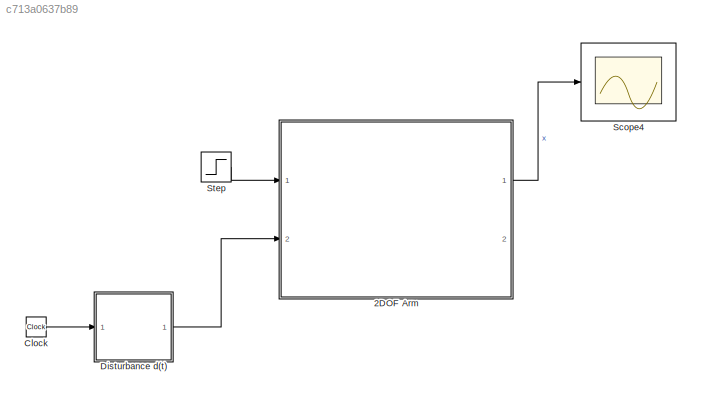
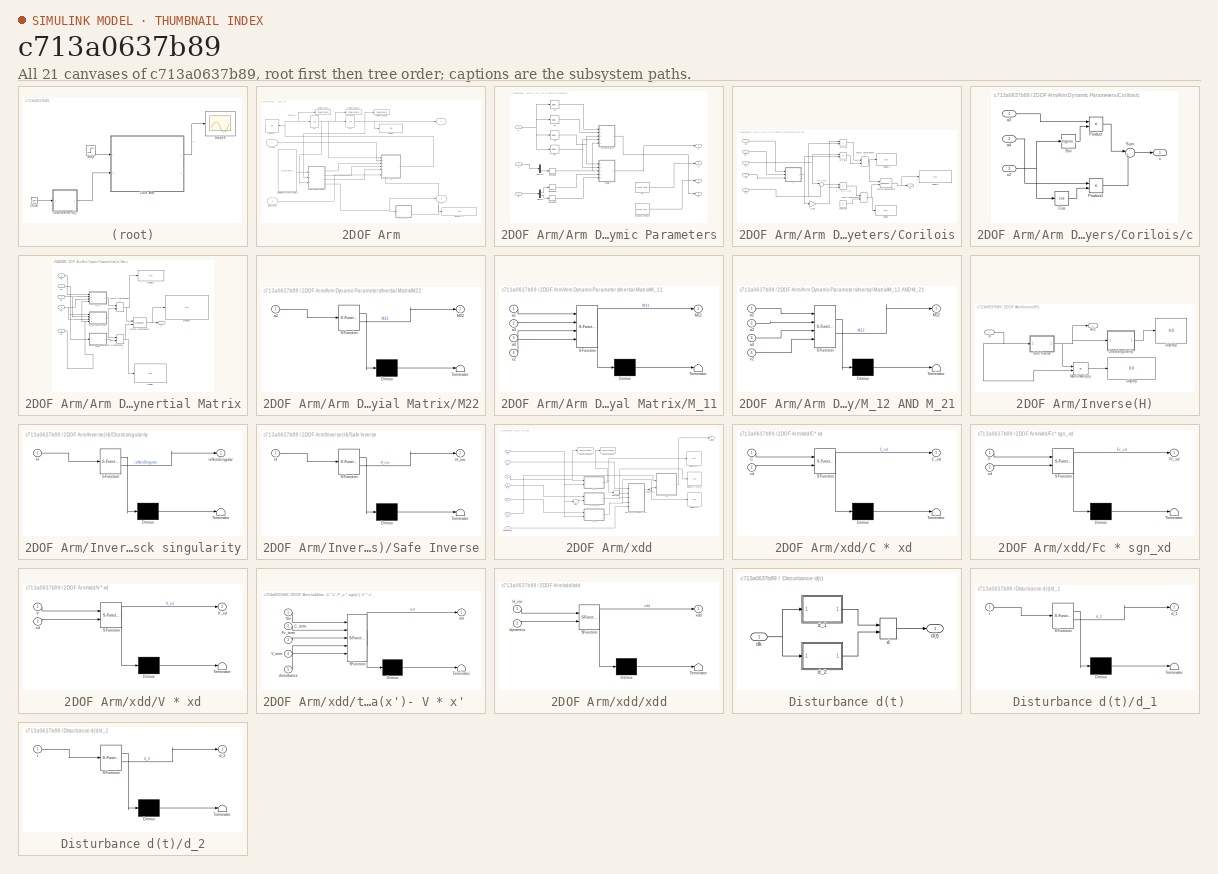
[diagram: thumbnail index - all 21 canvases of the model, root first then tree order]
MODEL slx_c713a0637b89
KIND model
CONFIG AbsTol = auto
CONFIG EnableMultiTasking = off
CONFIG FixedStep = auto
CONFIG MaxStep = 0.01
CONFIG MinStep = auto
CONFIG RelTol = 1e-3
CONFIG SampleTimeConstraint = Unconstrained
CONFIG SolverName = VariableStepAuto
CONFIG StartTime = 0.0
CONFIG StopTime = 5
BLOCK [SubSystem] 2DOF Arm
  Ports = [2, 2]
  RequestExecContextInheritance = off
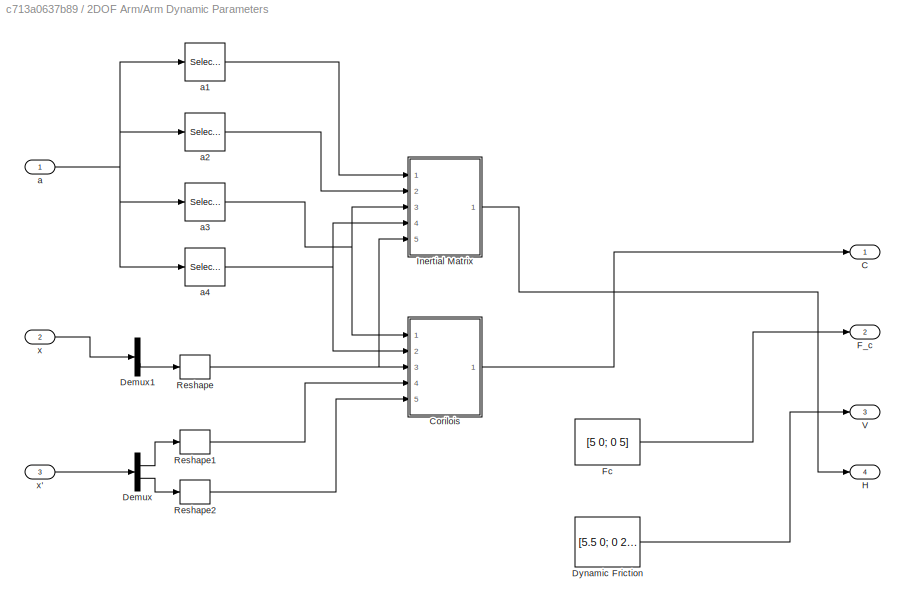
BLOCK [SubSystem] 2DOF Arm/Arm Dynamic Parameters
  Ports = [3, 4]
  RequestExecContextInheritance = off
BLOCK [Outport] 2DOF Arm/Arm Dynamic Parameters/C
BLOCK [SubSystem] 2DOF Arm/Arm Dynamic Parameters/Corilois
  Ports = [5, 1]
  RequestExecContextInheritance = off
BLOCK [Product] 2DOF Arm/Arm Dynamic Parameters/Corilois/-c * (x'_1 + x'_2)
  Ports = [2, 1]
BLOCK [Product] 2DOF Arm/Arm Dynamic Parameters/Corilois/-c * x'_2
  Ports = [2, 1]
BLOCK [Outport] 2DOF Arm/Arm Dynamic Parameters/Corilois/C
BLOCK [Constant] 2DOF Arm/Arm Dynamic Parameters/Corilois/Constant
  Value = 0
BLOCK [Display] 2DOF Arm/Arm Dynamic Parameters/Corilois/Display
  Decimation = 1
  Ports = [1]
BLOCK [Display] 2DOF Arm/Arm Dynamic Parameters/Corilois/Display1
  Decimation = 1
  Ports = [1]
BLOCK [Display] 2DOF Arm/Arm Dynamic Parameters/Corilois/Display2
  Decimation = 1
  Ports = [1]
BLOCK [Gain] 2DOF Arm/Arm Dynamic Parameters/Corilois/Gain
  Gain = -1
BLOCK [Concatenate] 2DOF Arm/Arm Dynamic Parameters/Corilois/Matrix Concatenate
  ConcatenateDimension = 2
  Mode = Multidimensional array
  Ports = [2, 1]
BLOCK [Concatenate] 2DOF Arm/Arm Dynamic Parameters/Corilois/Vector Concatenate
  Ports = [2, 1]
BLOCK [Concatenate] 2DOF Arm/Arm Dynamic Parameters/Corilois/Vector Concatenate1
  Ports = [2, 1]
BLOCK [Inport] 2DOF Arm/Arm Dynamic Parameters/Corilois/a3
BLOCK [Inport] 2DOF Arm/Arm Dynamic Parameters/Corilois/a4
  Port = 2
BLOCK [SubSystem] 2DOF Arm/Arm Dynamic Parameters/Corilois/c
  Ports = [3, 1]
  RequestExecContextInheritance = off
BLOCK [Product] 2DOF Arm/Arm Dynamic Parameters/Corilois/c * x'_1
  Ports = [2, 1]
BLOCK [Trigonometry] 2DOF Arm/Arm Dynamic Parameters/Corilois/c/Cos
  Operator = cos
  Ports = [1, 1]
BLOCK [Product] 2DOF Arm/Arm Dynamic Parameters/Corilois/c/Product
  Ports = [2, 1]
BLOCK [Product] 2DOF Arm/Arm Dynamic Parameters/Corilois/c/Product1
  Ports = [2, 1]
BLOCK [Trigonometry] 2DOF Arm/Arm Dynamic Parameters/Corilois/c/Sin
  Ports = [1, 1]
BLOCK [Sum] 2DOF Arm/Arm Dynamic Parameters/Corilois/c/Sum
  Inputs = |+-
  Ports = [2, 1]
BLOCK [Inport] 2DOF Arm/Arm Dynamic Parameters/Corilois/c/a3
BLOCK [Inport] 2DOF Arm/Arm Dynamic Parameters/Corilois/c/a4
  Port = 2
BLOCK [Outport] 2DOF Arm/Arm Dynamic Parameters/Corilois/c/c
BLOCK [Inport] 2DOF Arm/Arm Dynamic Parameters/Corilois/c/x2
  Port = 3
BLOCK [Inport] 2DOF Arm/Arm Dynamic Parameters/Corilois/x'_1
  Port = 4
BLOCK [Sum] 2DOF Arm/Arm Dynamic Parameters/Corilois/x'_1 + x'_2
  Inputs = |++
  Ports = [2, 1]
BLOCK [Inport] 2DOF Arm/Arm Dynamic Parameters/Corilois/x'_2
  Port = 5
BLOCK [Inport] 2DOF Arm/Arm Dynamic Parameters/Corilois/x2
  Port = 3
BLOCK [Demux] 2DOF Arm/Arm Dynamic Parameters/Demux
  Outputs = 2
  Ports = [1, 2]
BLOCK [Demux] 2DOF Arm/Arm Dynamic Parameters/Demux1
  Outputs = 2
  Ports = [1, 2]
BLOCK [Constant] 2DOF Arm/Arm Dynamic Parameters/Dynamic Friction
  Value = [5.5 0; 0 2.7]
BLOCK [Outport] 2DOF Arm/Arm Dynamic Parameters/F_c
  Port = 2
BLOCK [Constant] 2DOF Arm/Arm Dynamic Parameters/Fc
  Value = [5 0; 0 5]
BLOCK [Outport] 2DOF Arm/Arm Dynamic Parameters/H
  Port = 4
BLOCK [SubSystem] 2DOF Arm/Arm Dynamic Parameters/Inertial Matrix
  Ports = [5, 1]
  RequestExecContextInheritance = off
BLOCK [Display] 2DOF Arm/Arm Dynamic Parameters/Inertial Matrix/Display
  Decimation = 1
  Ports = [1]
BLOCK [Display] 2DOF Arm/Arm Dynamic Parameters/Inertial Matrix/Display1
  Decimation = 1
  Ports = [1]
BLOCK [Display] 2DOF Arm/Arm Dynamic Parameters/Inertial Matrix/Display2
  Decimation = 1
  Ports = [1]
BLOCK [Outport] 2DOF Arm/Arm Dynamic Parameters/Inertial Matrix/H
BLOCK [SubSystem] 2DOF Arm/Arm Dynamic Parameters/Inertial Matrix/M22
  ErrorFcn = Stateflow.Translate.translate
  PermitHierarchicalResolution = ExplicitOnly
  Ports = [1, 1]
  RequestExecContextInheritance = off
  SFBlockType = MATLAB Function
  TreatAsAtomicUnit = on
BLOCK [Demux] 2DOF Arm/Arm Dynamic Parameters/Inertial Matrix/M22/ Demux 
  Outputs = 1
  Ports = [1, 1]
BLOCK [S-Function] 2DOF Arm/Arm Dynamic Parameters/Inertial Matrix/M22/ SFunction 
  EnableBusSupport = on
  FunctionName = sf_sfun
  PortCounts = [1 2]
  Ports = [1, 2]
  SFcnIsStateOwnerBlock = off
  SFunctionDeploymentMode = off
  Tag = Stateflow S-Function 7
BLOCK [Terminator] 2DOF Arm/Arm Dynamic Parameters/Inertial Matrix/M22/ Terminator 
BLOCK [Outport] 2DOF Arm/Arm Dynamic Parameters/Inertial Matrix/M22/M22
BLOCK [Inport] 2DOF Arm/Arm Dynamic Parameters/Inertial Matrix/M22/a2
BLOCK [SubSystem] 2DOF Arm/Arm Dynamic Parameters/Inertial Matrix/M_11
  ErrorFcn = Stateflow.Translate.translate
  PermitHierarchicalResolution = ExplicitOnly
  Ports = [4, 1]
  RequestExecContextInheritance = off
  SFBlockType = MATLAB Function
  TreatAsAtomicUnit = on
BLOCK [Demux] 2DOF Arm/Arm Dynamic Parameters/Inertial Matrix/M_11/ Demux 
  Outputs = 1
  Ports = [1, 1]
BLOCK [S-Function] 2DOF Arm/Arm Dynamic Parameters/Inertial Matrix/M_11/ SFunction 
  EnableBusSupport = on
  FunctionName = sf_sfun
  PortCounts = [4 2]
  Ports = [4, 2]
  SFcnIsStateOwnerBlock = off
  SFunctionDeploymentMode = off
  Tag = Stateflow S-Function 8
BLOCK [Terminator] 2DOF Arm/Arm Dynamic Parameters/Inertial Matrix/M_11/ Terminator 
BLOCK [Outport] 2DOF Arm/Arm Dynamic Parameters/Inertial Matrix/M_11/M11
  VectorParamsAs1DForOutWhenUnconnected = off
BLOCK [Inport] 2DOF Arm/Arm Dynamic Parameters/Inertial Matrix/M_11/a1
BLOCK [Inport] 2DOF Arm/Arm Dynamic Parameters/Inertial Matrix/M_11/a3
  Port = 2
BLOCK [Inport] 2DOF Arm/Arm Dynamic Parameters/Inertial Matrix/M_11/a4
  Port = 3
BLOCK [Inport] 2DOF Arm/Arm Dynamic Parameters/Inertial Matrix/M_11/x2
  Port = 4
BLOCK [SubSystem] 2DOF Arm/Arm Dynamic Parameters/Inertial Matrix/M_12 AND M_21
  ErrorFcn = Stateflow.Translate.translate
  PermitHierarchicalResolution = ExplicitOnly
  Ports = [4, 1]
  RequestExecContextInheritance = off
  SFBlockType = MATLAB Function
  TreatAsAtomicUnit = on
BLOCK [Demux] 2DOF Arm/Arm Dynamic Parameters/Inertial Matrix/M_12 AND M_21/ Demux 
  Outputs = 1
  Ports = [1, 1]
BLOCK [S-Function] 2DOF Arm/Arm Dynamic Parameters/Inertial Matrix/M_12 AND M_21/ SFunction 
  EnableBusSupport = on
  FunctionName = sf_sfun
  PortCounts = [4 2]
  Ports = [4, 2]
  SFcnIsStateOwnerBlock = off
  SFunctionDeploymentMode = off
  Tag = Stateflow S-Function 9
BLOCK [Terminator] 2DOF Arm/Arm Dynamic Parameters/Inertial Matrix/M_12 AND M_21/ Terminator 
BLOCK [Outport] 2DOF Arm/Arm Dynamic Parameters/Inertial Matrix/M_12 AND M_21/M12
BLOCK [Inport] 2DOF Arm/Arm Dynamic Parameters/Inertial Matrix/M_12 AND M_21/a2
BLOCK [Inport] 2DOF Arm/Arm Dynamic Parameters/Inertial Matrix/M_12 AND M_21/a3
  Port = 2
BLOCK [Inport] 2DOF Arm/Arm Dynamic Parameters/Inertial Matrix/M_12 AND M_21/a4
  Port = 3
BLOCK [Inport] 2DOF Arm/Arm Dynamic Parameters/Inertial Matrix/M_12 AND M_21/x2
  Port = 4
BLOCK [Concatenate] 2DOF Arm/Arm Dynamic Parameters/Inertial Matrix/Matrix Concatenate
  ConcatenateDimension = 2
  Mode = Multidimensional array
  Ports = [2, 1]
BLOCK [Concatenate] 2DOF Arm/Arm Dynamic Parameters/Inertial Matrix/Vector Concatenate1
  Ports = [2, 1]
BLOCK [Concatenate] 2DOF Arm/Arm Dynamic Parameters/Inertial Matrix/Vector Concatenate2
  Ports = [2, 1]
BLOCK [Inport] 2DOF Arm/Arm Dynamic Parameters/Inertial Matrix/a1
BLOCK [Inport] 2DOF Arm/Arm Dynamic Parameters/Inertial Matrix/a2
  Port = 2
BLOCK [Inport] 2DOF Arm/Arm Dynamic Parameters/Inertial Matrix/a3
  Port = 3
BLOCK [Inport] 2DOF Arm/Arm Dynamic Parameters/Inertial Matrix/a4
  Port = 4
BLOCK [Inport] 2DOF Arm/Arm Dynamic Parameters/Inertial Matrix/x2
  Port = 5
BLOCK [Reshape] 2DOF Arm/Arm Dynamic Parameters/Reshape
  OutputDimensionality = Customize
  OutputDimensions = 1
  Ports = [1, 1]
BLOCK [Reshape] 2DOF Arm/Arm Dynamic Parameters/Reshape1
  OutputDimensionality = Customize
  OutputDimensions = 1
  Ports = [1, 1]
BLOCK [Reshape] 2DOF Arm/Arm Dynamic Parameters/Reshape2
  OutputDimensionality = Customize
  OutputDimensions = 1
  Ports = [1, 1]
BLOCK [Outport] 2DOF Arm/Arm Dynamic Parameters/V
  Port = 3
BLOCK [Inport] 2DOF Arm/Arm Dynamic Parameters/a
BLOCK [Selector] 2DOF Arm/Arm Dynamic Parameters/a1
  IndexOptions = Index vector (dialog)
  Indices = [1]
  InputPortWidth = 4
  OutputSizes = 1
  Ports = [1, 1]
BLOCK [Selector] 2DOF Arm/Arm Dynamic Parameters/a2
  IndexOptions = Index vector (dialog)
  Indices = [2]
  InputPortWidth = 4
  OutputSizes = 1
  Ports = [1, 1]
BLOCK [Selector] 2DOF Arm/Arm Dynamic Parameters/a3
  IndexOptions = Index vector (dialog)
  Indices = [3]
  InputPortWidth = 4
  OutputSizes = 1
  Ports = [1, 1]
BLOCK [Selector] 2DOF Arm/Arm Dynamic Parameters/a4
  IndexOptions = Index vector (dialog)
  Indices = [4]
  InputPortWidth = 4
  OutputSizes = 1
  Ports = [1, 1]
BLOCK [Inport] 2DOF Arm/Arm Dynamic Parameters/x
  Port = 2
  PortDimensions = [2 1]
BLOCK [Inport] 2DOF Arm/Arm Dynamic Parameters/x'
  Port = 3
  PortDimensions = [2 1]
BLOCK [Display] 2DOF Arm/Display
  Decimation = 1
  Ports = [1]
BLOCK [Display] 2DOF Arm/Display H^-1
  Decimation = 1
  Ports = [1]
BLOCK [Display] 2DOF Arm/Display x''
  Decimation = 1
  Ports = [1]
BLOCK [Inport] 2DOF Arm/Disturbance
  Port = 2
  PortDimensions = [2 1]
BLOCK [Constant] 2DOF Arm/Estimated Physical Parameters
  Value = [3.3;0.97;1.4;0.6]
BLOCK [Outport] 2DOF Arm/H
  Port = 2
BLOCK [SubSystem] 2DOF Arm/Inverse(H)
  NameLocation = right
  PortSchema = {"entries":[{"content":{"sides":[{"content":{"connectorIds":["In1"]},"type":"ConnectorPlacement.EquallySpacedRectSide","uuid":"e93da7b9-99f6-499c-a0cb-6f5b129eec99"},{"content":{"connectorIds":[],"side":"RIGHT"},"type":"ConnectorPlacement.EquallySpacedRectSide","uuid":"25c75cce-7d31-4940-9360-78f60f805e3f"},{"content":{"connectorIds":[],"side":"TOP"},"type":"ConnectorPlacement.EquallySpacedRectSid...<+384ch>
  Ports = [1, 1]
  RequestExecContextInheritance = off
BLOCK [SubSystem] 2DOF Arm/Inverse(H)/Check singularity
  ErrorFcn = Stateflow.Translate.translate
  PermitHierarchicalResolution = ExplicitOnly
  Ports = [1, 1]
  RequestExecContextInheritance = off
  SFBlockType = MATLAB Function
  TreatAsAtomicUnit = on
BLOCK [Demux] 2DOF Arm/Inverse(H)/Check singularity/ Demux 
  Outputs = 1
  Ports = [1, 1]
BLOCK [S-Function] 2DOF Arm/Inverse(H)/Check singularity/ SFunction 
  EnableBusSupport = on
  FunctionName = sf_sfun
  PortCounts = [1 2]
  Ports = [1, 2]
  SFcnIsStateOwnerBlock = off
  SFunctionDeploymentMode = off
  Tag = Stateflow S-Function 11
BLOCK [Terminator] 2DOF Arm/Inverse(H)/Check singularity/ Terminator 
BLOCK [Inport] 2DOF Arm/Inverse(H)/Check singularity/H
BLOCK [Outport] 2DOF Arm/Inverse(H)/Check singularity/isNonSingular
BLOCK [Display] 2DOF Arm/Inverse(H)/Display
  Decimation = 1
  Ports = [1]
BLOCK [Display] 2DOF Arm/Inverse(H)/Display1
  Decimation = 1
  Ports = [1]
BLOCK [Inport] 2DOF Arm/Inverse(H)/H
  PortDimensions = [2 2]
BLOCK [Outport] 2DOF Arm/Inverse(H)/H^-1
BLOCK [Product] 2DOF Arm/Inverse(H)/Matrix Multiply
  Multiplication = Matrix(*)
  Ports = [2, 1]
BLOCK [SubSystem] 2DOF Arm/Inverse(H)/Safe Inverse
  ErrorFcn = Stateflow.Translate.translate
  PermitHierarchicalResolution = ExplicitOnly
  Ports = [1, 1]
  RequestExecContextInheritance = off
  SFBlockType = MATLAB Function
  TreatAsAtomicUnit = on
BLOCK [Demux] 2DOF Arm/Inverse(H)/Safe Inverse/ Demux 
  Outputs = 1
  Ports = [1, 1]
BLOCK [S-Function] 2DOF Arm/Inverse(H)/Safe Inverse/ SFunction 
  EnableBusSupport = on
  FunctionName = sf_sfun
  PortCounts = [1 2]
  Ports = [1, 2]
  SFcnIsStateOwnerBlock = off
  SFunctionDeploymentMode = off
  Tag = Stateflow S-Function 15
BLOCK [Terminator] 2DOF Arm/Inverse(H)/Safe Inverse/ Terminator 
BLOCK [Inport] 2DOF Arm/Inverse(H)/Safe Inverse/H
BLOCK [Outport] 2DOF Arm/Inverse(H)/Safe Inverse/H_inv
BLOCK [ToWorkspace] 2DOF Arm/To Workspace
  FixptAsFi = on
  MaxDataPoints = inf
  Ports = [1]
  SampleTime = -1
  SaveFormat = Timeseries
  VariableName = xdd
BLOCK [ToWorkspace] 2DOF Arm/To Workspace1
  FixptAsFi = on
  MaxDataPoints = inf
  Ports = [1]
  SampleTime = -1
  SaveFormat = Timeseries
  VariableName = xd
BLOCK [ToWorkspace] 2DOF Arm/To Workspace2
  FixptAsFi = on
  MaxDataPoints = inf
  Ports = [1]
  SampleTime = -1
  SaveFormat = Structure With Time
  VariableName = x
BLOCK [Inport] 2DOF Arm/Torque
  OutDataTypeStr = double
  PortDimensions = [2 1]
  SamplingMode = Sample based
  SignalType = real
BLOCK [Integrator] 2DOF Arm/pos
  ContinuousStateAttributes = 'pos'
  InitialCondition = [0.3;0.5]
  LimitOutput = on
  LowerSaturationLimit = -2 * pi
  Ports = [1, 1]
  UpperSaturationLimit = 2*pi
BLOCK [Integrator] 2DOF Arm/vel
  ContinuousStateAttributes = 'vel'
  LimitOutput = on
  LowerSaturationLimit = -2*pi
  Ports = [1, 1]
  UpperSaturationLimit = 2*pi
BLOCK [Outport] 2DOF Arm/x
  IconDisplay = Port number and signal name
  OutDataTypeStr = double
  PortDimensions = [2 1]
  SampleTime = 0
  SamplingMode = Sample based
  SignalType = real
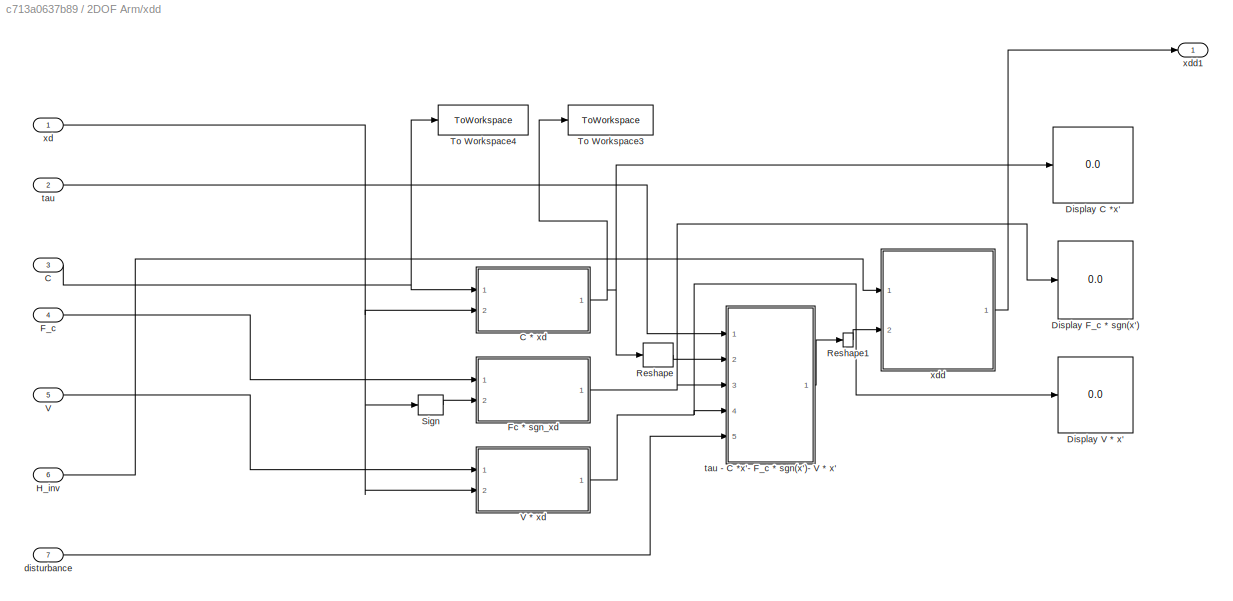
BLOCK [SubSystem] 2DOF Arm/xdd
  Ports = [7, 1]
  RequestExecContextInheritance = off
BLOCK [Inport] 2DOF Arm/xdd/C
  Port = 3
BLOCK [SubSystem] 2DOF Arm/xdd/C * xd 
  ErrorFcn = Stateflow.Translate.translate
  PermitHierarchicalResolution = ExplicitOnly
  Ports = [2, 1]
  RequestExecContextInheritance = off
  SFBlockType = MATLAB Function
  TreatAsAtomicUnit = on
BLOCK [Demux] 2DOF Arm/xdd/C * xd / Demux 
  Outputs = 1
  Ports = [1, 1]
BLOCK [S-Function] 2DOF Arm/xdd/C * xd / SFunction 
  EnableBusSupport = on
  FunctionName = sf_sfun
  PortCounts = [2 2]
  Ports = [2, 2]
  SFcnIsStateOwnerBlock = off
  SFunctionDeploymentMode = off
  Tag = Stateflow S-Function 4
BLOCK [Terminator] 2DOF Arm/xdd/C * xd / Terminator 
BLOCK [Inport] 2DOF Arm/xdd/C * xd /C
BLOCK [Outport] 2DOF Arm/xdd/C * xd /C_xd
BLOCK [Inport] 2DOF Arm/xdd/C * xd /xd
  Port = 2
BLOCK [Display] 2DOF Arm/xdd/Display C *x'
  Decimation = 1
  Ports = [1]
BLOCK [Display] 2DOF Arm/xdd/Display F_c * sgn(x')
  Decimation = 1
  Ports = [1]
BLOCK [Display] 2DOF Arm/xdd/Display V * x'
  Decimation = 1
  Ports = [1]
BLOCK [Inport] 2DOF Arm/xdd/F_c
  Port = 4
BLOCK [SubSystem] 2DOF Arm/xdd/Fc * sgn_xd
  ErrorFcn = Stateflow.Translate.translate
  PermitHierarchicalResolution = ExplicitOnly
  Ports = [2, 1]
  RequestExecContextInheritance = off
  SFBlockType = MATLAB Function
  TreatAsAtomicUnit = on
BLOCK [Demux] 2DOF Arm/xdd/Fc * sgn_xd/ Demux 
  Outputs = 1
  Ports = [1, 1]
BLOCK [S-Function] 2DOF Arm/xdd/Fc * sgn_xd/ SFunction 
  EnableBusSupport = on
  FunctionName = sf_sfun
  PortCounts = [2 2]
  Ports = [2, 2]
  SFcnIsStateOwnerBlock = off
  SFunctionDeploymentMode = off
  Tag = Stateflow S-Function 13
BLOCK [Terminator] 2DOF Arm/xdd/Fc * sgn_xd/ Terminator 
BLOCK [Inport] 2DOF Arm/xdd/Fc * sgn_xd/F
BLOCK [Outport] 2DOF Arm/xdd/Fc * sgn_xd/Fc_xd
BLOCK [Inport] 2DOF Arm/xdd/Fc * sgn_xd/xd
  Port = 2
BLOCK [Inport] 2DOF Arm/xdd/H_inv
  Port = 6
BLOCK [Reshape] 2DOF Arm/xdd/Reshape
  OutputDimensionality = Column vector (2-D)
  Ports = [1, 1]
BLOCK [Reshape] 2DOF Arm/xdd/Reshape1
  OutputDimensionality = Column vector (2-D)
  Ports = [1, 1]
BLOCK [Signum] 2DOF Arm/xdd/Sign
BLOCK [ToWorkspace] 2DOF Arm/xdd/To Workspace3
  FixptAsFi = on
  MaxDataPoints = inf
  Ports = [1]
  SampleTime = -1
  SaveFormat = Structure With Time
  VariableName = Cxd
BLOCK [ToWorkspace] 2DOF Arm/xdd/To Workspace4
  FixptAsFi = on
  MaxDataPoints = inf
  Ports = [1]
  SampleTime = -1
  SaveFormat = Timeseries
  VariableName = C
BLOCK [Inport] 2DOF Arm/xdd/V
  Port = 5
BLOCK [SubSystem] 2DOF Arm/xdd/V * xd
  ErrorFcn = Stateflow.Translate.translate
  PermitHierarchicalResolution = ExplicitOnly
  Ports = [2, 1]
  RequestExecContextInheritance = off
  SFBlockType = MATLAB Function
  TreatAsAtomicUnit = on
BLOCK [Demux] 2DOF Arm/xdd/V * xd/ Demux 
  Outputs = 1
  Ports = [1, 1]
BLOCK [S-Function] 2DOF Arm/xdd/V * xd/ SFunction 
  EnableBusSupport = on
  FunctionName = sf_sfun
  PortCounts = [2 2]
  Ports = [2, 2]
  SFcnIsStateOwnerBlock = off
  SFunctionDeploymentMode = off
  Tag = Stateflow S-Function 14
BLOCK [Terminator] 2DOF Arm/xdd/V * xd/ Terminator 
BLOCK [Inport] 2DOF Arm/xdd/V * xd/V
BLOCK [Outport] 2DOF Arm/xdd/V * xd/V_xd
BLOCK [Inport] 2DOF Arm/xdd/V * xd/xd
  Port = 2
BLOCK [Inport] 2DOF Arm/xdd/disturbance
  Port = 7
BLOCK [Inport] 2DOF Arm/xdd/tau
  Port = 2
BLOCK [SubSystem] 2DOF Arm/xdd/tau - C *x'- F_c * sgn(x')- V * x'  
  ErrorFcn = Stateflow.Translate.translate
  PermitHierarchicalResolution = ExplicitOnly
  Ports = [5, 1]
  RequestExecContextInheritance = off
  SFBlockType = MATLAB Function
  TreatAsAtomicUnit = on
BLOCK [Demux] 2DOF Arm/xdd/tau - C *x'- F_c * sgn(x')- V * x'  / Demux 
  Outputs = 1
  Ports = [1, 1]
BLOCK [S-Function] 2DOF Arm/xdd/tau - C *x'- F_c * sgn(x')- V * x'  / SFunction 
  EnableBusSupport = on
  FunctionName = sf_sfun
  PortCounts = [5 2]
  Ports = [5, 2]
  SFcnIsStateOwnerBlock = off
  SFunctionDeploymentMode = off
  Tag = Stateflow S-Function 12
BLOCK [Terminator] 2DOF Arm/xdd/tau - C *x'- F_c * sgn(x')- V * x'  / Terminator 
BLOCK [Inport] 2DOF Arm/xdd/tau - C *x'- F_c * sgn(x')- V * x'  /C_term
  Port = 2
BLOCK [Inport] 2DOF Arm/xdd/tau - C *x'- F_c * sgn(x')- V * x'  /Fc_term
  Port = 3
BLOCK [Inport] 2DOF Arm/xdd/tau - C *x'- F_c * sgn(x')- V * x'  /V_term
  Port = 4
BLOCK [Inport] 2DOF Arm/xdd/tau - C *x'- F_c * sgn(x')- V * x'  /disturbance
  Port = 5
BLOCK [Outport] 2DOF Arm/xdd/tau - C *x'- F_c * sgn(x')- V * x'  /out
BLOCK [Inport] 2DOF Arm/xdd/tau - C *x'- F_c * sgn(x')- V * x'  /tau
BLOCK [Inport] 2DOF Arm/xdd/xd
BLOCK [SubSystem] 2DOF Arm/xdd/xdd
  ErrorFcn = Stateflow.Translate.translate
  PermitHierarchicalResolution = ExplicitOnly
  Ports = [2, 1]
  RequestExecContextInheritance = off
  SFBlockType = MATLAB Function
  TreatAsAtomicUnit = on
BLOCK [Demux] 2DOF Arm/xdd/xdd/ Demux 
  Outputs = 1
  Ports = [1, 1]
BLOCK [S-Function] 2DOF Arm/xdd/xdd/ SFunction 
  EnableBusSupport = on
  FunctionName = sf_sfun
  PortCounts = [2 2]
  Ports = [2, 2]
  SFcnIsStateOwnerBlock = off
  SFunctionDeploymentMode = off
  Tag = Stateflow S-Function 10
BLOCK [Terminator] 2DOF Arm/xdd/xdd/ Terminator 
BLOCK [Inport] 2DOF Arm/xdd/xdd/H_inv
BLOCK [Inport] 2DOF Arm/xdd/xdd/dynamics
  Port = 2
BLOCK [Outport] 2DOF Arm/xdd/xdd/xdd
BLOCK [Outport] 2DOF Arm/xdd/xdd1
BLOCK [Clock] Clock
  Commented = on
BLOCK [SubSystem] Disturbance d(t)
  Commented = on
  Ports = [1, 1]
  RequestExecContextInheritance = off
BLOCK [Inport] Disturbance d(t)/clk
BLOCK [Concatenate] Disturbance d(t)/d
  Ports = [2, 1]
BLOCK [Outport] Disturbance d(t)/d(t)
BLOCK [SubSystem] Disturbance d(t)/d_1
  ErrorFcn = Stateflow.Translate.translate
  PermitHierarchicalResolution = ExplicitOnly
  Ports = [1, 1]
  RequestExecContextInheritance = off
  SFBlockType = MATLAB Function
  TreatAsAtomicUnit = on
BLOCK [Demux] Disturbance d(t)/d_1/ Demux 
  Outputs = 1
  Ports = [1, 1]
BLOCK [S-Function] Disturbance d(t)/d_1/ SFunction 
  EnableBusSupport = on
  FunctionName = sf_sfun
  PortCounts = [1 2]
  Ports = [1, 2]
  SFcnIsStateOwnerBlock = off
  SFunctionDeploymentMode = off
  Tag = Stateflow S-Function 5
BLOCK [Terminator] Disturbance d(t)/d_1/ Terminator 
BLOCK [Outport] Disturbance d(t)/d_1/d_1
BLOCK [Inport] Disturbance d(t)/d_1/t
BLOCK [SubSystem] Disturbance d(t)/d_2
  ErrorFcn = Stateflow.Translate.translate
  PermitHierarchicalResolution = ExplicitOnly
  Ports = [1, 1]
  RequestExecContextInheritance = off
  SFBlockType = MATLAB Function
  TreatAsAtomicUnit = on
BLOCK [Demux] Disturbance d(t)/d_2/ Demux 
  Outputs = 1
  Ports = [1, 1]
BLOCK [S-Function] Disturbance d(t)/d_2/ SFunction 
  EnableBusSupport = on
  FunctionName = sf_sfun
  PortCounts = [1 2]
  Ports = [1, 2]
  SFcnIsStateOwnerBlock = off
  SFunctionDeploymentMode = off
  Tag = Stateflow S-Function 6
BLOCK [Terminator] Disturbance d(t)/d_2/ Terminator 
BLOCK [Outport] Disturbance d(t)/d_2/d_2
BLOCK [Inport] Disturbance d(t)/d_2/t
BLOCK [Scope] Scope4
  Floating = off
  NumInputPorts = 1
  Ports = [1]
  ScopeSpecificationString = Simulink.scopes.TimeScopeBlockCfg('CurrentConfiguration', extmgr.ConfigurationSet(extmgr.Configuration('Core','General UI',true),extmgr.Configuration('Core','Source UI',true),extmgr.Configuration('Sources','WiredSimulink',true),extmgr.Configuration('Visuals','Time Domain',true,'SerializedDisplays',{struct('MinYLimReal','-1.57947','MaxYLimReal','2.24415','YLabelReal','','MinYLimMag','0.00000','MaxY...<+1421ch>
BLOCK [Step] Step
  After = [1;1]
  SampleTime = 0
  VectorParams1D = off
ANNOTATION 2DOF Arm: $\ddot{x}$
LINE 2DOF Arm/Arm Dynamic Parameters/Corilois/-c * (x'_1 + x'_2):1 -> 2DOF Arm/Arm Dynamic Parameters/Corilois/Vector Concatenate:1
LINE 2DOF Arm/Arm Dynamic Parameters/Corilois/-c * x'_2:1 -> 2DOF Arm/Arm Dynamic Parameters/Corilois/Vector Concatenate1:1
LINE 2DOF Arm/Arm Dynamic Parameters/Corilois/Constant:1 -> 2DOF Arm/Arm Dynamic Parameters/Corilois/Vector Concatenate:2
NET 2DOF Arm/Arm Dynamic Parameters/Corilois/Gain:1 -> 2DOF Arm/Arm Dynamic Parameters/Corilois/-c * (x'_1 + x'_2):2, 2DOF Arm/Arm Dynamic Parameters/Corilois/-c * x'_2:1
NET 2DOF Arm/Arm Dynamic Parameters/Corilois/Matrix Concatenate:1 -> 2DOF Arm/Arm Dynamic Parameters/Corilois/C:1, 2DOF Arm/Arm Dynamic Parameters/Corilois/Display2:1
NET 2DOF Arm/Arm Dynamic Parameters/Corilois/Vector Concatenate1:1 -> 2DOF Arm/Arm Dynamic Parameters/Corilois/Display1:1, 2DOF Arm/Arm Dynamic Parameters/Corilois/Matrix Concatenate:1
NET 2DOF Arm/Arm Dynamic Parameters/Corilois/Vector Concatenate:1 -> 2DOF Arm/Arm Dynamic Parameters/Corilois/Display:1, 2DOF Arm/Arm Dynamic Parameters/Corilois/Matrix Concatenate:2
LINE 2DOF Arm/Arm Dynamic Parameters/Corilois/a3:1 -> 2DOF Arm/Arm Dynamic Parameters/Corilois/c:1
LINE 2DOF Arm/Arm Dynamic Parameters/Corilois/a4:1 -> 2DOF Arm/Arm Dynamic Parameters/Corilois/c:2
LINE 2DOF Arm/Arm Dynamic Parameters/Corilois/c * x'_1:1 -> 2DOF Arm/Arm Dynamic Parameters/Corilois/Vector Concatenate1:2
LINE 2DOF Arm/Arm Dynamic Parameters/Corilois/c/Cos:1 -> 2DOF Arm/Arm Dynamic Parameters/Corilois/c/Product1:2
LINE 2DOF Arm/Arm Dynamic Parameters/Corilois/c/Product1:1 -> 2DOF Arm/Arm Dynamic Parameters/Corilois/c/Sum:2
LINE 2DOF Arm/Arm Dynamic Parameters/Corilois/c/Product:1 -> 2DOF Arm/Arm Dynamic Parameters/Corilois/c/Sum:1
LINE 2DOF Arm/Arm Dynamic Parameters/Corilois/c/Sin:1 -> 2DOF Arm/Arm Dynamic Parameters/Corilois/c/Product:2
LINE 2DOF Arm/Arm Dynamic Parameters/Corilois/c/Sum:1 -> 2DOF Arm/Arm Dynamic Parameters/Corilois/c/c:1
LINE 2DOF Arm/Arm Dynamic Parameters/Corilois/c/a3:1 -> 2DOF Arm/Arm Dynamic Parameters/Corilois/c/Product:1
LINE 2DOF Arm/Arm Dynamic Parameters/Corilois/c/a4:1 -> 2DOF Arm/Arm Dynamic Parameters/Corilois/c/Product1:1
NET 2DOF Arm/Arm Dynamic Parameters/Corilois/c/x2:1 -> 2DOF Arm/Arm Dynamic Parameters/Corilois/c/Cos:1, 2DOF Arm/Arm Dynamic Parameters/Corilois/c/Sin:1
NET 2DOF Arm/Arm Dynamic Parameters/Corilois/c:1 -> 2DOF Arm/Arm Dynamic Parameters/Corilois/Gain:1, 2DOF Arm/Arm Dynamic Parameters/Corilois/c * x'_1:2
LINE 2DOF Arm/Arm Dynamic Parameters/Corilois/x'_1 + x'_2:1 -> 2DOF Arm/Arm Dynamic Parameters/Corilois/-c * (x'_1 + x'_2):1
NET 2DOF Arm/Arm Dynamic Parameters/Corilois/x'_1:1 -> 2DOF Arm/Arm Dynamic Parameters/Corilois/c * x'_1:1, 2DOF Arm/Arm Dynamic Parameters/Corilois/x'_1 + x'_2:1
NET 2DOF Arm/Arm Dynamic Parameters/Corilois/x'_2:1 -> 2DOF Arm/Arm Dynamic Parameters/Corilois/-c * x'_2:2, 2DOF Arm/Arm Dynamic Parameters/Corilois/x'_1 + x'_2:2
LINE 2DOF Arm/Arm Dynamic Parameters/Corilois/x2:1 -> 2DOF Arm/Arm Dynamic Parameters/Corilois/c:3
LINE 2DOF Arm/Arm Dynamic Parameters/Corilois:1 -> 2DOF Arm/Arm Dynamic Parameters/C:1
LINE 2DOF Arm/Arm Dynamic Parameters/Demux1:2 -> 2DOF Arm/Arm Dynamic Parameters/Reshape:1
LINE 2DOF Arm/Arm Dynamic Parameters/Demux:1 -> 2DOF Arm/Arm Dynamic Parameters/Reshape1:1
LINE 2DOF Arm/Arm Dynamic Parameters/Demux:2 -> 2DOF Arm/Arm Dynamic Parameters/Reshape2:1
LINE 2DOF Arm/Arm Dynamic Parameters/Dynamic Friction:1 -> 2DOF Arm/Arm Dynamic Parameters/V:1
LINE 2DOF Arm/Arm Dynamic Parameters/Fc:1 -> 2DOF Arm/Arm Dynamic Parameters/F_c:1
LINE 2DOF Arm/Arm Dynamic Parameters/Inertial Matrix/M22:1 -> 2DOF Arm/Arm Dynamic Parameters/Inertial Matrix/Vector Concatenate2:2
LINE 2DOF Arm/Arm Dynamic Parameters/Inertial Matrix/M_11:1 -> 2DOF Arm/Arm Dynamic Parameters/Inertial Matrix/Vector Concatenate1:1
NET 2DOF Arm/Arm Dynamic Parameters/Inertial Matrix/M_12 AND M_21:1 -> 2DOF Arm/Arm Dynamic Parameters/Inertial Matrix/Vector Concatenate1:2, 2DOF Arm/Arm Dynamic Parameters/Inertial Matrix/Vector Concatenate2:1
NET 2DOF Arm/Arm Dynamic Parameters/Inertial Matrix/Matrix Concatenate:1 -> 2DOF Arm/Arm Dynamic Parameters/Inertial Matrix/Display2:1, 2DOF Arm/Arm Dynamic Parameters/Inertial Matrix/H:1
NET 2DOF Arm/Arm Dynamic Parameters/Inertial Matrix/Vector Concatenate1:1 -> 2DOF Arm/Arm Dynamic Parameters/Inertial Matrix/Display1:1, 2DOF Arm/Arm Dynamic Parameters/Inertial Matrix/Matrix Concatenate:1
NET 2DOF Arm/Arm Dynamic Parameters/Inertial Matrix/Vector Concatenate2:1 -> 2DOF Arm/Arm Dynamic Parameters/Inertial Matrix/Display:1, 2DOF Arm/Arm Dynamic Parameters/Inertial Matrix/Matrix Concatenate:2
LINE 2DOF Arm/Arm Dynamic Parameters/Inertial Matrix/a1:1 -> 2DOF Arm/Arm Dynamic Parameters/Inertial Matrix/M_11:1
NET 2DOF Arm/Arm Dynamic Parameters/Inertial Matrix/a2:1 -> 2DOF Arm/Arm Dynamic Parameters/Inertial Matrix/M22:1, 2DOF Arm/Arm Dynamic Parameters/Inertial Matrix/M_12 AND M_21:1
NET 2DOF Arm/Arm Dynamic Parameters/Inertial Matrix/a3:1 -> 2DOF Arm/Arm Dynamic Parameters/Inertial Matrix/M_11:2, 2DOF Arm/Arm Dynamic Parameters/Inertial Matrix/M_12 AND M_21:2
NET 2DOF Arm/Arm Dynamic Parameters/Inertial Matrix/a4:1 -> 2DOF Arm/Arm Dynamic Parameters/Inertial Matrix/M_11:3, 2DOF Arm/Arm Dynamic Parameters/Inertial Matrix/M_12 AND M_21:3
NET 2DOF Arm/Arm Dynamic Parameters/Inertial Matrix/x2:1 -> 2DOF Arm/Arm Dynamic Parameters/Inertial Matrix/M_11:4, 2DOF Arm/Arm Dynamic Parameters/Inertial Matrix/M_12 AND M_21:4
LINE 2DOF Arm/Arm Dynamic Parameters/Inertial Matrix:1 -> 2DOF Arm/Arm Dynamic Parameters/H:1
LINE 2DOF Arm/Arm Dynamic Parameters/Reshape1:1 -> 2DOF Arm/Arm Dynamic Parameters/Corilois:4
LINE 2DOF Arm/Arm Dynamic Parameters/Reshape2:1 -> 2DOF Arm/Arm Dynamic Parameters/Corilois:5
NET 2DOF Arm/Arm Dynamic Parameters/Reshape:1 -> 2DOF Arm/Arm Dynamic Parameters/Corilois:3, 2DOF Arm/Arm Dynamic Parameters/Inertial Matrix:5
LINE 2DOF Arm/Arm Dynamic Parameters/a1:1 -> 2DOF Arm/Arm Dynamic Parameters/Inertial Matrix:1
LINE 2DOF Arm/Arm Dynamic Parameters/a2:1 -> 2DOF Arm/Arm Dynamic Parameters/Inertial Matrix:2
NET 2DOF Arm/Arm Dynamic Parameters/a3:1 -> 2DOF Arm/Arm Dynamic Parameters/Corilois:1, 2DOF Arm/Arm Dynamic Parameters/Inertial Matrix:3
NET 2DOF Arm/Arm Dynamic Parameters/a4:1 -> 2DOF Arm/Arm Dynamic Parameters/Corilois:2, 2DOF Arm/Arm Dynamic Parameters/Inertial Matrix:4
NET 2DOF Arm/Arm Dynamic Parameters/a:1 -> 2DOF Arm/Arm Dynamic Parameters/a1:1, 2DOF Arm/Arm Dynamic Parameters/a2:1, 2DOF Arm/Arm Dynamic Parameters/a3:1, 2DOF Arm/Arm Dynamic Parameters/a4:1
LINE 2DOF Arm/Arm Dynamic Parameters/x':1 -> 2DOF Arm/Arm Dynamic Parameters/Demux:1
LINE 2DOF Arm/Arm Dynamic Parameters/x:1 -> 2DOF Arm/Arm Dynamic Parameters/Demux1:1
LINE 2DOF Arm/Arm Dynamic Parameters:1 -> 2DOF Arm/xdd:3
LINE 2DOF Arm/Arm Dynamic Parameters:2 -> 2DOF Arm/xdd:4
LINE 2DOF Arm/Arm Dynamic Parameters:3 -> 2DOF Arm/xdd:5
NET 2DOF Arm/Arm Dynamic Parameters:4 -> 2DOF Arm/H:1, 2DOF Arm/Inverse(H):1
LINE 2DOF Arm/Disturbance:1 -> 2DOF Arm/xdd:7
LINE 2DOF Arm/Estimated Physical Parameters:1 -> 2DOF Arm/Arm Dynamic Parameters:1
LINE 2DOF Arm/Inverse(H)/Check singularity:1 -> 2DOF Arm/Inverse(H)/Display1:1
NET 2DOF Arm/Inverse(H)/H:1 -> 2DOF Arm/Inverse(H)/Matrix Multiply:2, 2DOF Arm/Inverse(H)/Safe Inverse:1
LINE 2DOF Arm/Inverse(H)/Matrix Multiply:1 -> 2DOF Arm/Inverse(H)/Display:1
NET 2DOF Arm/Inverse(H)/Safe Inverse:1 -> 2DOF Arm/Inverse(H)/Check singularity:1, 2DOF Arm/Inverse(H)/H^-1:1, 2DOF Arm/Inverse(H)/Matrix Multiply:1
NET 2DOF Arm/Inverse(H):1 -> 2DOF Arm/Display H^-1:1, 2DOF Arm/xdd:6
LINE 2DOF Arm/Torque:1 -> 2DOF Arm/xdd:2
NET 2DOF Arm/pos:1 -> 2DOF Arm/Arm Dynamic Parameters:2, 2DOF Arm/Display:1, 2DOF Arm/To Workspace2:1, 2DOF Arm/x:1
NET 2DOF Arm/vel:1 -> 2DOF Arm/Arm Dynamic Parameters:3, 2DOF Arm/To Workspace1:1, 2DOF Arm/pos:1, 2DOF Arm/xdd:1
NET 2DOF Arm/xdd/C * xd :1 -> 2DOF Arm/xdd/Display C *x':1, 2DOF Arm/xdd/Reshape:1, 2DOF Arm/xdd/To Workspace3:1
NET 2DOF Arm/xdd/C:1 -> 2DOF Arm/xdd/C * xd :1, 2DOF Arm/xdd/To Workspace4:1
LINE 2DOF Arm/xdd/F_c:1 -> 2DOF Arm/xdd/Fc * sgn_xd:1
NET 2DOF Arm/xdd/Fc * sgn_xd:1 -> 2DOF Arm/xdd/Display F_c * sgn(x'):1, 2DOF Arm/xdd/tau - C *x'- F_c * sgn(x')- V * x'  :3
LINE 2DOF Arm/xdd/H_inv:1 -> 2DOF Arm/xdd/xdd:1
LINE 2DOF Arm/xdd/Reshape1:1 -> 2DOF Arm/xdd/xdd:2
LINE 2DOF Arm/xdd/Reshape:1 -> 2DOF Arm/xdd/tau - C *x'- F_c * sgn(x')- V * x'  :2
LINE 2DOF Arm/xdd/Sign:1 -> 2DOF Arm/xdd/Fc * sgn_xd:2
NET 2DOF Arm/xdd/V * xd:1 -> 2DOF Arm/xdd/Display V * x':1, 2DOF Arm/xdd/tau - C *x'- F_c * sgn(x')- V * x'  :4
LINE 2DOF Arm/xdd/V:1 -> 2DOF Arm/xdd/V * xd:1
LINE 2DOF Arm/xdd/disturbance:1 -> 2DOF Arm/xdd/tau - C *x'- F_c * sgn(x')- V * x'  :5
LINE 2DOF Arm/xdd/tau - C *x'- F_c * sgn(x')- V * x'  :1 -> 2DOF Arm/xdd/Reshape1:1
LINE 2DOF Arm/xdd/tau:1 -> 2DOF Arm/xdd/tau - C *x'- F_c * sgn(x')- V * x'  :1
NET 2DOF Arm/xdd/xd:1 -> 2DOF Arm/xdd/C * xd :2, 2DOF Arm/xdd/Sign:1, 2DOF Arm/xdd/V * xd:2
LINE 2DOF Arm/xdd/xdd:1 -> 2DOF Arm/xdd/xdd1:1
NET 2DOF Arm/xdd:1 -> 2DOF Arm/Display x'':1, 2DOF Arm/To Workspace:1, 2DOF Arm/vel:1
LINE 2DOF Arm:1 -> Scope4:1
LINE Clock:1 -> Disturbance d(t):1
NET Disturbance d(t)/clk:1 -> Disturbance d(t)/d_1:1, Disturbance d(t)/d_2:1
LINE Disturbance d(t)/d:1 -> Disturbance d(t)/d(t):1
LINE Disturbance d(t)/d_1:1 -> Disturbance d(t)/d:1
LINE Disturbance d(t)/d_2:1 -> Disturbance d(t)/d:2
LINE Disturbance d(t):1 -> 2DOF Arm:2
LINE Step:1 -> 2DOF Arm:1
note: NET lines group one-source signal fan-out (src -> all destinations, sorted); 1:1 wires keep LINE
CHART 2DOF Arm/Inverse(H)/Safe Inverse states=1 transitions=1
  STATE_LABEL 'eML_blk_kernel()'
  STATE_LABEL "SCRIPT:\nfunction H_inv = safe_inverse(H)\n    cond_num = cond(H);\n    if cond_num > 1e12\n        disp('Warning: Matrix is close to singular or badly scaled. Consider using pinv instead.');\n        H_inv = pinv(H);\n    else\n        % Use regularized inverse if necessary\n        epsilon = 1e-6; % Small regularization term\n        H_reg = H + epsilon * eye(size(H));\n        H_inv = inv(H_reg);\n       ...<+185ch>"
CHART 2DOF Arm/xdd/C * xd  states=1 transitions=1
  STATE_LABEL 'eML_blk_kernel()'
  STATE_LABEL 'SCRIPT:\nfunction C_xd = regulateC_term(C, xd)\n\n    % Define replacement values\n    nan_replacement = eps; % A very small positive number\n    inf_replacement = realmax; % The largest positive floating-point number\n    %negative_inf_replacement = realmin;\n    \n    % Compute the initial multiplication\n    initial_result = C *xd;\n    reshape(initial_result, 2, 1);\n    \n    % Check for NaNs or Infs in ...<+883ch>'
CHART Disturbance d(t)/d_1 states=1 transitions=1
  STATE_LABEL 'eML_blk_kernel()'
  STATE_LABEL 'SCRIPT:\nfunction d_1 = fcn(t)\n\nd_1 = 300* cos(1.7*pi*(t+12)) + 270* sin(pi*t);\n'
CHART Disturbance d(t)/d_2 states=1 transitions=1
  STATE_LABEL 'eML_blk_kernel()'
  STATE_LABEL 'SCRIPT:\nfunction d_2 = fcn(t)\n\nd_2 = 250 * sin(1.35*pi*(t + 12)) + 300 * cos(2*t);\n'
CHART 2DOF Arm/Arm Dynamic Parameters/Inertial Matrix/M22 states=1 transitions=1
  STATE_LABEL 'eML_blk_kernel()'
  STATE_LABEL 'SCRIPT:\nfunction M22 = fcn(a2)\n\nM22 = a2;\n'
CHART 2DOF Arm/Arm Dynamic Parameters/Inertial Matrix/M_11 states=1 transitions=1
  STATE_LABEL 'eML_blk_kernel()'
  STATE_LABEL 'SCRIPT:\nfunction M11 = fcn(a1, a3, a4, x2)\n%#codegen\n\nM11 = a1 + 2*a3 * cos(x2)- 2 * a4 * sin(x2);'
CHART 2DOF Arm/Arm Dynamic Parameters/Inertial Matrix/M_12 AND M_21 states=1 transitions=1
  STATE_LABEL 'eML_blk_kernel()'
  STATE_LABEL 'SCRIPT:\nfunction M12 = fcn(a2, a3, a4, x2)\n\nM12 = a2 + a3 * cos(x2) + a4 * sin(x2);\n'
CHART 2DOF Arm/xdd/xdd states=1 transitions=1
  STATE_LABEL 'eML_blk_kernel()'
  STATE_LABEL 'SCRIPT:\nfunction xdd = xdd(H_inv, dynamics)\n\n    % Define replacement values\n    nan_replacement = eps; % A very small positive number\n    inf_replacement = realmax; % The largest positive floating-point number\n    \n    % Compute the initial multiplication\n    initial_xdd = H_inv * dynamics;\n    \n    % Check for NaNs or Infs in the result\n    if any(isnan(initial_xdd)) || any(isinf(initial_xdd))\n ...<+943ch>'
CHART 2DOF Arm/Inverse(H)/Check singularity states=1 transitions=1
  STATE_LABEL 'eML_blk_kernel()'
  STATE_LABEL 'SCRIPT:\nfunction isNonSingular = checkNonSingular(H)\n    % H is the input matrix\n    determinant = det(H);\n    if determinant ~= 0\n        isNonSingular = 1;\n    else\n        isNonSingular = 0;\n    end\nend\n'
CHART 2DOF Arm/xdd/tau - C *x'- F_c * sgn(x')- V * x'   states=1 transitions=1
  STATE_LABEL 'eML_blk_kernel()'
  STATE_LABEL 'SCRIPT:\nfunction out = dynamics(tau, C_term, Fc_term, V_term, disturbance)\n    % Define replacement values\n    nan_replacement = eps; % A very small positive number\n    inf_replacement = realmax; % The largest positive floating-point number\n    \n    % Compute result\n    result = tau - C_term - Fc_term - V_term - disturbance;\n    \n    % Ensure the output does not contain NaNs or Infs\n    result(isn...<+128ch>'
CHART 2DOF Arm/xdd/Fc * sgn_xd states=1 transitions=1
  STATE_LABEL 'eML_blk_kernel()'
  STATE_LABEL 'SCRIPT:\nfunction Fc_xd = regulateFc_xd(F, xd)\n\n    % Define replacement values\n    nan_replacement = eps; % A very small positive number\n    inf_replacement = realmax; % The largest positive floating-point number\n    \n    % Compute the initial multiplication\n    initial_result = F *xd;\n    reshape(initial_result, 2, 1);\n    \n    % Check for NaNs or Infs in the result\n    if any(isnan(initial_resul...<+843ch>'
CHART 2DOF Arm/xdd/V * xd states=1 transitions=1
  STATE_LABEL 'eML_blk_kernel()'
  STATE_LABEL 'SCRIPT:\nfunction V_xd = regulateV_xd(V, xd)\n\n    % Define replacement values\n    nan_replacement = eps; % A very small positive number\n    inf_replacement = realmax; % The largest positive floating-point number\n    \n    % Compute the initial multiplication\n    initial_result = V *xd;\n    reshape(initial_result, 2, 1);\n    \n    % Check for NaNs or Infs in the result\n    if any(isnan(initial_result)...<+840ch>'
CHART  states=0 transitions=0
CHART  states=0 transitions=0
CHART  states=0 transitions=0
CHART  states=0 transitions=0
CHART  states=0 transitions=0
CHART  states=0 transitions=0
CHART  states=0 transitions=0
CHART  states=0 transitions=0
CHART  states=0 transitions=0
CHART  states=0 transitions=0
CHART  states=0 transitions=0
CHART  states=0 transitions=0
